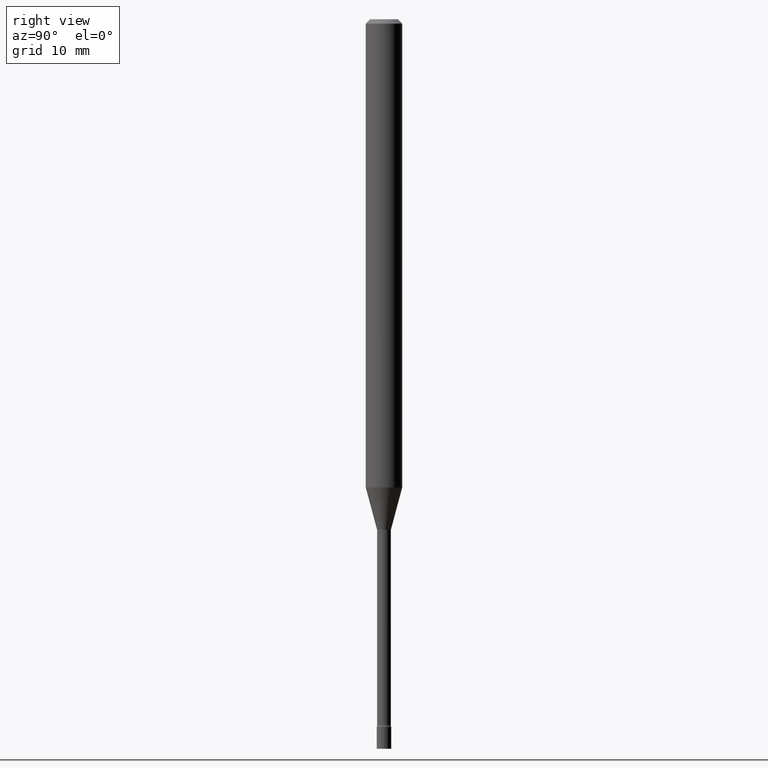
[diagram: clean part render]
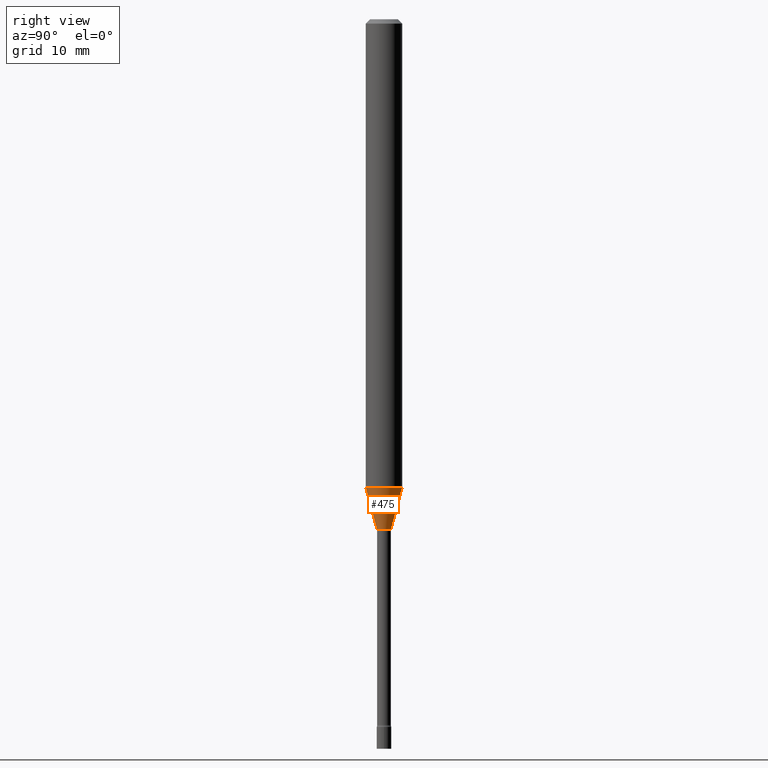
[diagram: same view with one face highlighted and labeled with its STEP entity id]
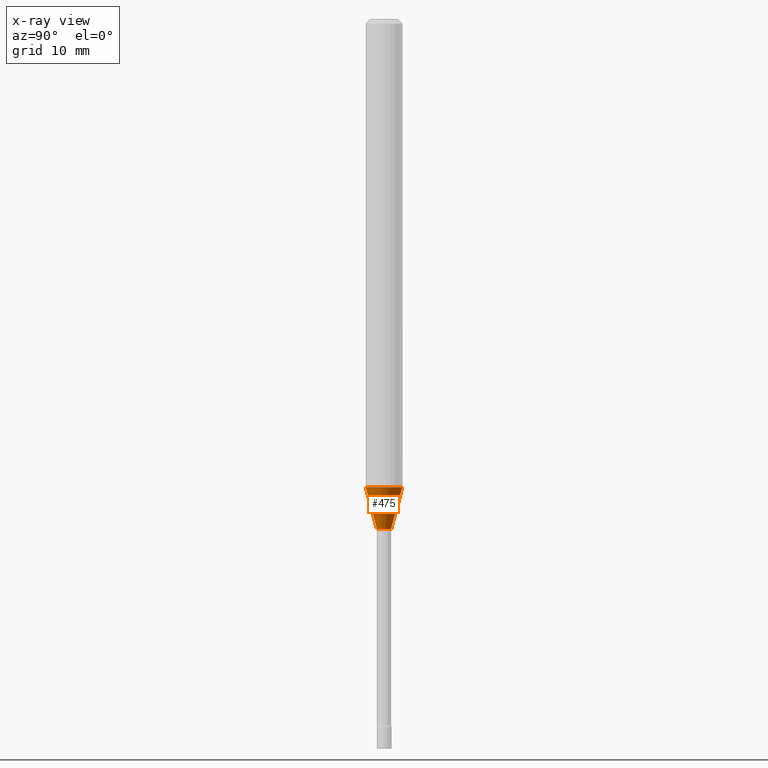
[diagram: x-ray of the same camera — body ghosted, the highlighted face saturated]
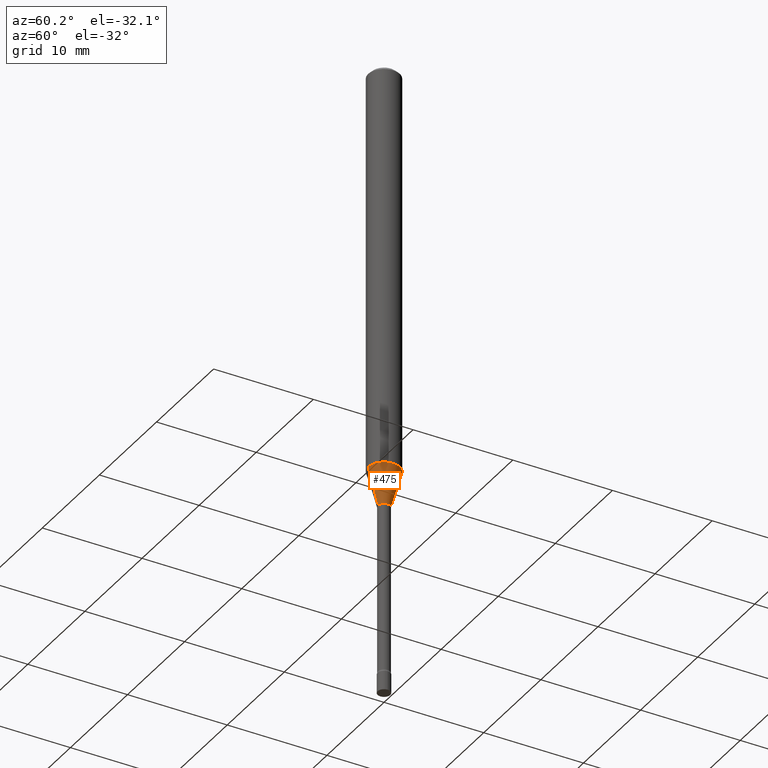
[diagram: same view with one face highlighted and labeled with its STEP entity id]
A machine part, right view. The second image highlights one B-rep face of the part: STEP entity #475.
The next image is the same camera in x-ray: the body ghosted, the highlighted face saturated — about 0% of this face is hidden behind the body in this view.
A second angle (auxiliary view) of the same face is appended — the face is thin or edge-on in the first view.
In plain terms, the highlighted conical surface has half-angle 15 deg.
Its self-contained STEP definition (entity closure, byte-faithful):
#7 = CARTESIAN_POINT ( 'NONE',  ( 4.274889566835328167E-29, -6.103455428466982164E-15, -1.748092501787273267 ) ) ;
#18 = EDGE_LOOP ( 'NONE', ( #504, #330, #416, #226 ) ) ;
#29 = CIRCLE ( 'NONE', #212, 0.06250000000000000000 ) ;
#33 = CARTESIAN_POINT ( 'NONE',  ( 3.923617679042957969E-29, -5.601928482122645795E-15, -1.604450018504814279 ) ) ;
#84 = DIRECTION ( 'NONE',  ( -6.982962677686265133E-15, -1.000000000000000000, 0.000000000000000000 ) ) ;
#108 = CARTESIAN_POINT ( 'NONE',  ( 3.073492131224338832E-16, 0.02401111260565788608, -1.748092501787273267 ) ) ;
#109 = EDGE_CURVE ( 'NONE', #337, #455, #306, .T. ) ;
#112 = CIRCLE ( 'NONE', #257, 0.02401111260566398883 ) ;
#153 = DIRECTION ( 'NONE',  ( -2.445459586643511658E-29, 3.491494541751496264E-15, 1.000000000000000000 ) ) ;
#163 = EDGE_CURVE ( 'NONE', #455, #443, #29, .T. ) ;
#167 = FACE_OUTER_BOUND ( 'NONE', #18, .T. ) ;
#171 = DIRECTION ( 'NONE',  ( -6.982962677686265133E-15, -1.000000000000000000, 0.000000000000000000 ) ) ;
#186 = LINE ( 'NONE', #394, #442 ) ;
#191 = DIRECTION ( 'NONE',  ( -6.982962677686265922E-15, -1.000000000000000000, 4.370956789862821150E-15 ) ) ;
#203 = CARTESIAN_POINT ( 'NONE',  ( 4.440892098501015662E-16, 0.06249999999999437256, -1.604450018504814501 ) ) ;
#212 = AXIS2_PLACEMENT_3D ( 'NONE', #33, #153, #191 ) ;
#222 = DIRECTION ( 'NONE',  ( -2.445459586643511658E-29, 3.491494541751496264E-15, 1.000000000000000000 ) ) ;
#226 = ORIENTED_EDGE ( 'NONE', *, *, #109, .F. ) ;
#239 = DIRECTION ( 'NONE',  ( 1.839019923739597160E-15, 0.2588190451025245142, 0.9659258262890670910 ) ) ;
#257 = AXIS2_PLACEMENT_3D ( 'NONE', #335, #222, #171 ) ;
#259 = CARTESIAN_POINT ( 'NONE',  ( -1.676687031750311194E-16, -0.02401111260567009159, -1.748092501787273267 ) ) ;
#260 = VERTEX_POINT ( 'NONE', #108 ) ;
#306 = LINE ( 'NONE', #427, #478 ) ;
#318 = DIRECTION ( 'NONE',  ( -2.445459586643511658E-29, 3.491494541751496264E-15, 1.000000000000000000 ) ) ;
#330 = ORIENTED_EDGE ( 'NONE', *, *, #383, .T. ) ;
#335 = CARTESIAN_POINT ( 'NONE',  ( 4.274889566835328167E-29, -6.103455428466982164E-15, -1.748092501787273267 ) ) ;
#337 = VERTEX_POINT ( 'NONE', #259 ) ;
#383 = EDGE_CURVE ( 'NONE', #260, #443, #186, .T. ) ;
#394 = CARTESIAN_POINT ( 'NONE',  ( 1.706092163947658798E-16, 0.02401111260565788608, -1.748092501787273267 ) ) ;
#398 = CONICAL_SURFACE ( 'NONE', #492, 0.02401111260566398883, 0.2617993877991498519 ) ;
#416 = ORIENTED_EDGE ( 'NONE', *, *, #163, .F. ) ;
#427 = CARTESIAN_POINT ( 'NONE',  ( -1.676687031750311194E-16, -0.02401111260567009159, -1.748092501787273267 ) ) ;
#442 = VECTOR ( 'NONE', #239, 39.37007874015748854 ) ;
#443 = VERTEX_POINT ( 'NONE', #203 ) ;
#455 = VERTEX_POINT ( 'NONE', #495 ) ;
#475 = ADVANCED_FACE ( 'NONE', ( #167 ), #398, .T. ) ;
#477 = DIRECTION ( 'NONE',  ( -1.807323732225327378E-15, -0.2588190451025177974, 0.9659258262890690894 ) ) ;
#478 = VECTOR ( 'NONE', #477, 39.37007874015748143 ) ;
#492 = AXIS2_PLACEMENT_3D ( 'NONE', #7, #318, #84 ) ;
#495 = CARTESIAN_POINT ( 'NONE',  ( -4.364351673553525715E-16, -0.06250000000000562050, -1.604450018504814057 ) ) ;
#497 = EDGE_CURVE ( 'NONE', #337, #260, #112, .T. ) ;
#504 = ORIENTED_EDGE ( 'NONE', *, *, #497, .T. ) ;